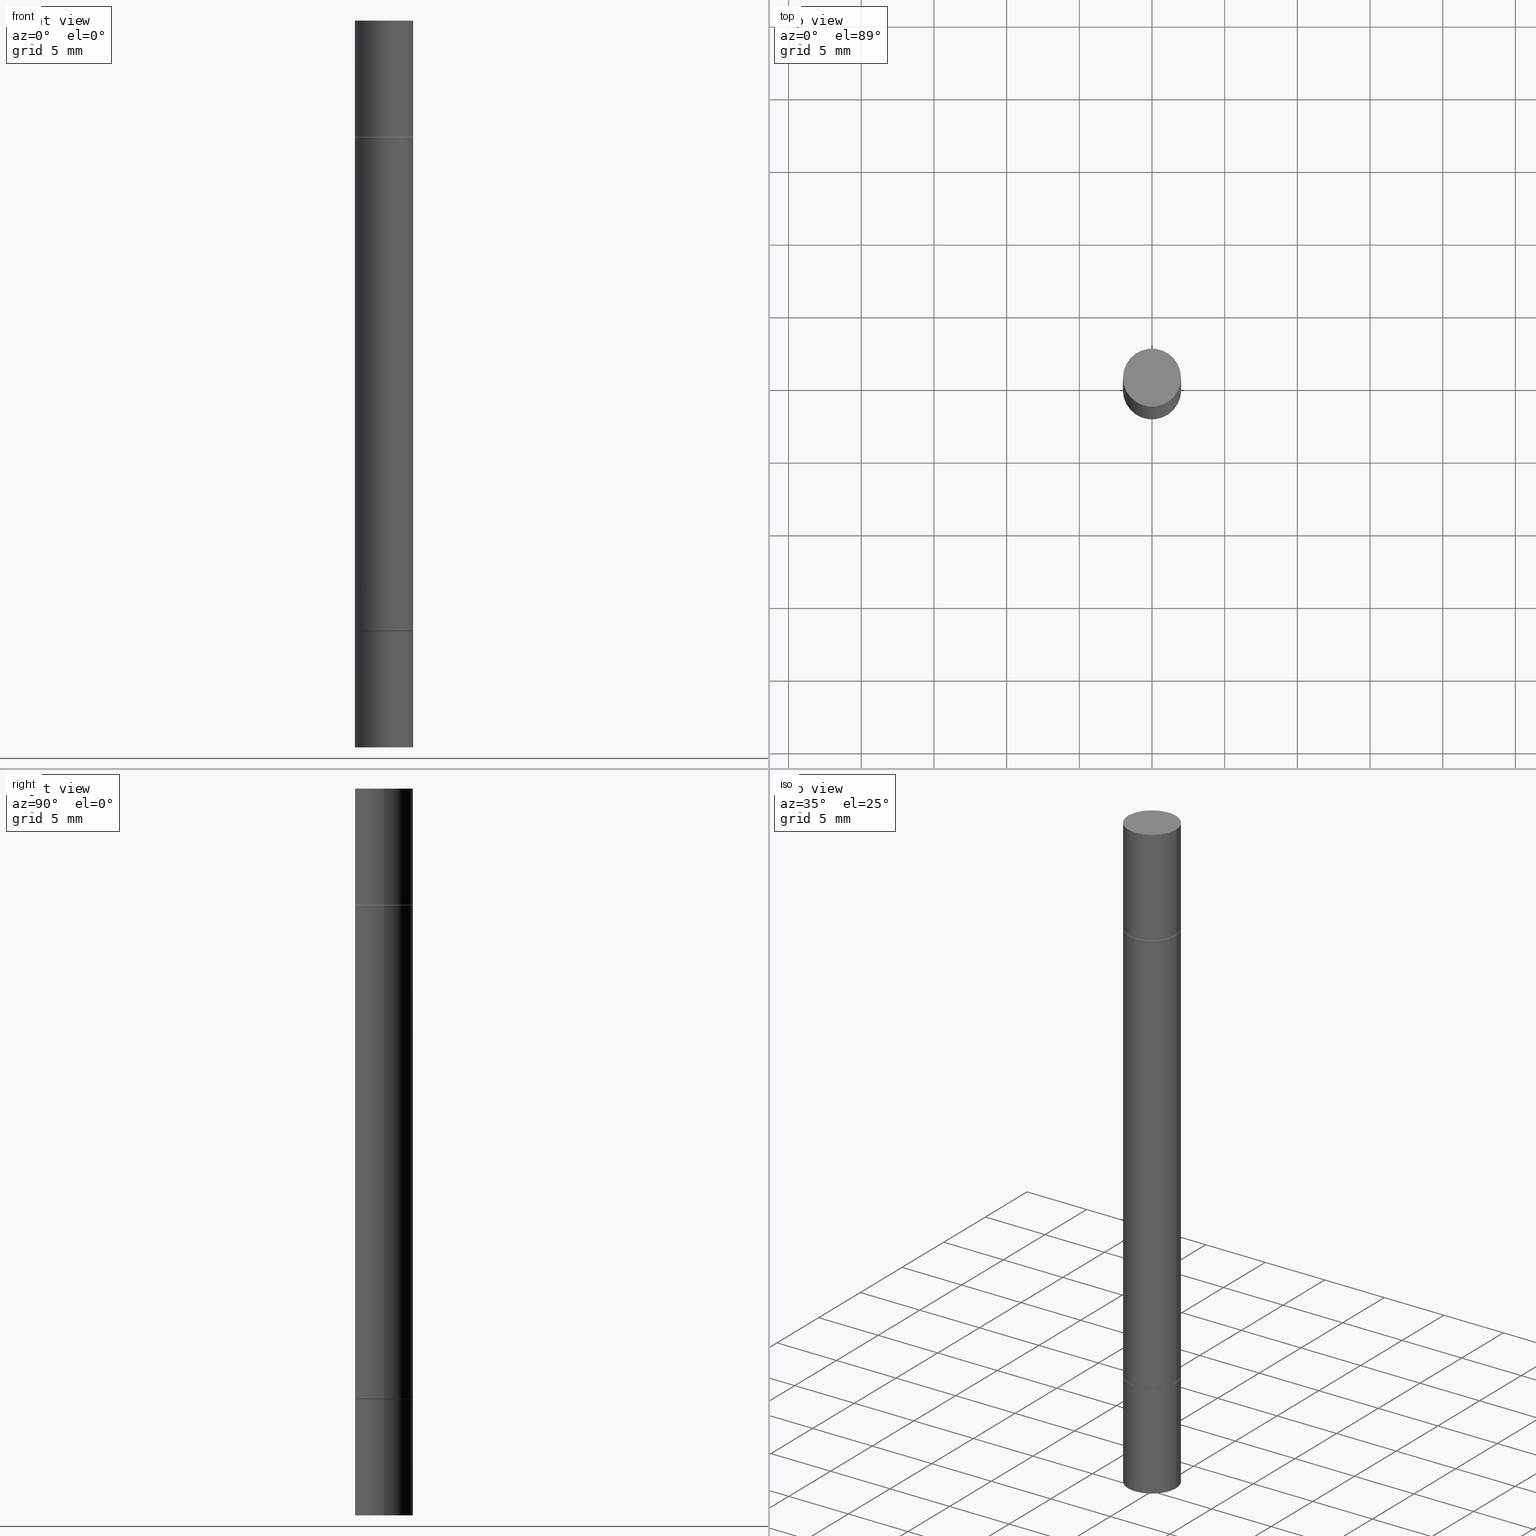
[diagram: canonical four-view strip — front | top / right | iso, engineering-drawing reading convention]
A machine part, canonical four-view strip (front | top / right | iso — engineering-drawing reading convention). The complete STEP part file that produces these views, byte-faithful:
ISO-10303-21;
HEADER;
FILE_DESCRIPTION (( 'STEP AP203' ),
    '1' );
FILE_NAME ('49058.STEP',
    '2024-03-04T15:53:27',
    ( '' ),
    ( '' ),
    'SwSTEP 2.0',
    'SolidWorks 2023',
    '' );
FILE_SCHEMA (( 'CONFIG_CONTROL_DESIGN' ));
ENDSEC;

DATA;
#1 = DIRECTION ( 'NONE',  ( 1.000000000000000000, -6.982962677686273021E-15, 0.000000000000000000 ) ) ;
#2 = PERSON_AND_ORGANIZATION_ROLE ( 'creator' ) ;
#3 = VERTEX_POINT ( 'NONE', #266 ) ;
#4 = EDGE_LOOP ( 'NONE', ( #432, #157 ) ) ;
#5 = CC_DESIGN_PERSON_AND_ORGANIZATION_ASSIGNMENT ( #397, #580, ( #200 ) ) ;
#6 = DIRECTION ( 'NONE',  ( -2.445468806185136597E-29, -3.492890411551752677E-15, -1.000000000000000000 ) ) ;
#7 = ORIENTED_EDGE ( 'NONE', *, *, #676, .T. ) ;
#8 = PERSON_AND_ORGANIZATION_ROLE ( 'classification_officer' ) ;
#9 = CYLINDRICAL_SURFACE ( 'NONE', #469, 0.07875000000000000056 ) ;
#10 = CIRCLE ( 'NONE', #666, 0.07874999999999987566 ) ;
#11 = AXIS2_PLACEMENT_3D ( 'NONE', #612, #299, #146 ) ;
#12 = DATE_AND_TIME ( #412, #46 ) ;
#13 = CARTESIAN_POINT ( 'NONE',  ( 4.043582671027123201E-29, -1.098873599825354270E-15, -0.3149999999999997802 ) ) ;
#14 = EDGE_CURVE ( 'NONE', #556, #517, #10, .T. ) ;
#15 = VERTEX_POINT ( 'NONE', #317 ) ;
#16 =( NAMED_UNIT ( * ) SI_UNIT ( $, .STERADIAN. ) SOLID_ANGLE_UNIT ( ) );
#17 = DIRECTION ( 'NONE',  ( 0.000000000000000000, 3.492185875197449524E-15, 1.000000000000000000 ) ) ;
#18 = ADVANCED_FACE ( 'NONE', ( #587 ), #150, .T. ) ;
#19 = ORIENTED_EDGE ( 'NONE', *, *, #341, .F. ) ;
#20 = CARTESIAN_POINT ( 'NONE',  ( 0.000000000000000000, 0.000000000000000000, 0.000000000000000000 ) ) ;
#21 = APPLICATION_CONTEXT ( 'configuration controlled 3d designs of mechanical parts and assemblies' ) ;
#22 = AXIS2_PLACEMENT_3D ( 'NONE', #442, #593, #283 ) ;
#23 = CARTESIAN_POINT ( 'NONE',  ( 4.043582671027123201E-29, -1.098873599825354270E-15, -0.3149999999999997802 ) ) ;
#24 = DIRECTION ( 'NONE',  ( 1.000000000000000000, -6.982962677686264344E-15, 0.000000000000000000 ) ) ;
#25 = CC_DESIGN_APPROVAL ( #505, ( #224 ) ) ;
#26 = DIRECTION ( 'NONE',  ( 2.445468806185136597E-29, 3.492890411551752677E-15, 1.000000000000000000 ) ) ;
#27 =( LENGTH_UNIT ( ) NAMED_UNIT ( * ) SI_UNIT ( $, .METRE. ) );
#28 = ADVANCED_FACE ( 'NONE', ( #529 ), #9, .T. ) ;
#29 = LINE ( 'NONE', #448, #290 ) ;
#30 = DIRECTION ( 'NONE',  ( 1.000000000000000000, -6.982962677686265922E-15, 0.000000000000000000 ) ) ;
#31 = VECTOR ( 'NONE', #134, 39.37007874015748143 ) ;
#32 = AXIS2_PLACEMENT_3D ( 'NONE', #227, #387, #599 ) ;
#33 = CONICAL_SURFACE ( 'NONE', #32, 0.07774999999999999967, 0.7853981633974056464 ) ;
#34 = EDGE_LOOP ( 'NONE', ( #672, #309, #113, #148 ) ) ;
#35 = CC_DESIGN_DATE_AND_TIME_ASSIGNMENT ( #162, #251, ( #114 ) ) ;
#36 = DIRECTION ( 'NONE',  ( -1.000000000000000000, 6.982962677686265922E-15, -9.839502134516470631E-33 ) ) ;
#37 = EDGE_LOOP ( 'NONE', ( #559, #128 ) ) ;
#38 = EDGE_CURVE ( 'NONE', #453, #258, #531, .T. ) ;
#39 = ORIENTED_EDGE ( 'NONE', *, *, #14, .F. ) ;
#40 = LINE ( 'NONE', #333, #235 ) ;
#41 = ORIENTED_EDGE ( 'NONE', *, *, #323, .T. ) ;
#42 = CARTESIAN_POINT ( 'NONE',  ( -0.07875000000000000056, 5.595524044110789003E-16, -3.873661383575737792E-30 ) ) ;
#43 = AXIS2_PLACEMENT_3D ( 'NONE', #641, #447, #78 ) ;
#44 = VECTOR ( 'NONE', #71, 39.37007874015748143 ) ;
#45 = EDGE_LOOP ( 'NONE', ( #487, #304, #484, #218 ) ) ;
#46 = LOCAL_TIME ( 10, 53, 27.00000000000000000, #66 ) ;
#47 = DIRECTION ( 'NONE',  ( -2.445468806185136877E-29, -3.492890411551753071E-15, -1.000000000000000000 ) ) ;
#48 = ORIENTED_EDGE ( 'NONE', *, *, #449, .T. ) ;
#49 = DIRECTION ( 'NONE',  ( 1.000000000000000000, -6.982962677686265922E-15, 9.839502134516470631E-33 ) ) ;
#50 = FACE_OUTER_BOUND ( 'NONE', #45, .T. ) ;
#51 = EDGE_CURVE ( 'NONE', #435, #165, #364, .T. ) ;
#52 = PERSON_AND_ORGANIZATION ( #573, #91 ) ;
#53 = CARTESIAN_POINT ( 'NONE',  ( 4.041137202220937598E-29, -1.102366490236907793E-15, -0.3159999999999998366 ) ) ;
#54 = CARTESIAN_POINT ( 'NONE',  ( 4.043582671027123201E-29, -5.773164393777141072E-15, -1.653499999999999970 ) ) ;
#55 = AXIS2_PLACEMENT_3D ( 'NONE', #53, #252, #198 ) ;
#56 = EDGE_LOOP ( 'NONE', ( #511, #202, #308, #19 ) ) ;
#57 = CONICAL_SURFACE ( 'NONE', #328, 0.07774999999999999967, 0.7853981633974056464 ) ;
#58 = EDGE_LOOP ( 'NONE', ( #183, #361, #189, #267 ) ) ;
#59 = CIRCLE ( 'NONE', #179, 0.07875000000000000056 ) ;
#60 = DIRECTION ( 'NONE',  ( 1.000000000000000000, -6.982962677686266711E-15, 0.000000000000000000 ) ) ;
#61 = CARTESIAN_POINT ( 'NONE',  ( 5.499083108678337748E-16, 0.07874999999999422740, -1.653500000000000192 ) ) ;
#62 = CALENDAR_DATE ( 2024, 4, 3 ) ;
#63 = ORIENTED_EDGE ( 'NONE', *, *, #239, .F. ) ;
#64 = COORDINATED_UNIVERSAL_TIME_OFFSET ( 5, 0, .BEHIND. ) ;
#65 = ORIENTED_EDGE ( 'NONE', *, *, #572, .T. ) ;
#66 = COORDINATED_UNIVERSAL_TIME_OFFSET ( 5, 0, .BEHIND. ) ;
#67 = CARTESIAN_POINT ( 'NONE',  ( 4.041137202220937598E-29, -1.102366490236907793E-15, -0.3159999999999998366 ) ) ;
#68 = ORIENTED_EDGE ( 'NONE', *, *, #496, .F. ) ;
#69 = VECTOR ( 'NONE', #671, 39.37007874015748143 ) ;
#70 = VECTOR ( 'NONE', #490, 39.37007874015748143 ) ;
#71 = DIRECTION ( 'NONE',  ( -2.445468806185136877E-29, -3.492890411551753071E-15, -1.000000000000000000 ) ) ;
#72 = EDGE_CURVE ( 'NONE', #258, #453, #645, .T. ) ;
#73 = PRODUCT_DEFINITION_SHAPE ( 'NONE', 'NONE',  #582 ) ;
#74 = CARTESIAN_POINT ( 'NONE',  ( 2.406952672487720357E-29, -3.436490507756365459E-15, -0.9842499999999998472 ) ) ;
#75 = DIRECTION ( 'NONE',  ( 1.000000000000000000, -6.982962677686273021E-15, 0.000000000000000000 ) ) ;
#76 = CARTESIAN_POINT ( 'NONE',  ( 4.041137202220937598E-29, -5.769672912438298064E-15, -1.652499999999999858 ) ) ;
#77 = FACE_OUTER_BOUND ( 'NONE', #574, .T. ) ;
#78 = DIRECTION ( 'NONE',  ( 1.000000000000000000, -6.982962677686261977E-15, 0.000000000000000000 ) ) ;
#79 = DIRECTION ( 'NONE',  ( -2.445468806185136597E-29, 3.491481338843145583E-15, 1.000000000000000000 ) ) ;
#80 = CYLINDRICAL_SURFACE ( 'NONE', #338, 0.07874999999999987566 ) ;
#81 = AXIS2_PLACEMENT_3D ( 'NONE', #473, #205, #362 ) ;
#82 = DIRECTION ( 'NONE',  ( -2.445468806185136597E-29, -3.492890411551752677E-15, -1.000000000000000000 ) ) ;
#83 = CC_DESIGN_SECURITY_CLASSIFICATION ( #114, ( #224 ) ) ;
#84 = FACE_OUTER_BOUND ( 'NONE', #164, .T. ) ;
#85 = EDGE_CURVE ( 'NONE', #15, #349, #327, .T. ) ;
#86 = CARTESIAN_POINT ( 'NONE',  ( 0.07875000000000000056, -7.424276206193971655E-15, -1.968499999999999694 ) ) ;
#87 = CARTESIAN_POINT ( 'NONE',  ( 0.07874999999999997280, -6.319581223306091410E-15, -1.652499999999999858 ) ) ;
#88 = CARTESIAN_POINT ( 'NONE',  ( 0.000000000000000000, -6.874367895326177521E-15, -1.968499999999999694 ) ) ;
#89 = CARTESIAN_POINT ( 'NONE',  ( -0.07875000000000000056, -8.479142681445664027E-18, 2.731847993664282447E-16 ) ) ;
#90 = VECTOR ( 'NONE', #538, 39.37007874015748143 ) ;
#91 = ORGANIZATION ( 'UNSPECIFIED', 'UNSPECIFIED', '' ) ;
#92 = ADVANCED_FACE ( 'NONE', ( #637 ), #388, .T. ) ;
#93 = LINE ( 'NONE', #104, #210 ) ;
#94 = CARTESIAN_POINT ( 'NONE',  ( -0.07875000000000000056, -5.763520300233858771E-15, -1.968500000000000139 ) ) ;
#95 = CARTESIAN_POINT ( 'NONE',  ( 0.07774999999999999967, -6.316089741967247614E-15, -1.653499999999999970 ) ) ;
#96 = EDGE_LOOP ( 'NONE', ( #63, #526, #318, #530 ) ) ;
#97 = CARTESIAN_POINT ( 'NONE',  ( 4.043582671027123201E-29, -1.098873599825354270E-15, -0.3149999999999997802 ) ) ;
#98 = FACE_OUTER_BOUND ( 'NONE', #336, .T. ) ;
#99 = LINE ( 'NONE', #42, #234 ) ;
#100 = AXIS2_PLACEMENT_3D ( 'NONE', #23, #168, #443 ) ;
#101 = AXIS2_PLACEMENT_3D ( 'NONE', #191, #291, #288 ) ;
#102 = ORIENTED_EDGE ( 'NONE', *, *, #454, .F. ) ;
#103 = AXIS2_PLACEMENT_3D ( 'NONE', #385, #131, #230 ) ;
#104 = CARTESIAN_POINT ( 'NONE',  ( -0.07874999999999987566, -6.334103678001671209E-15, -1.968499999999999694 ) ) ;
#105 = EDGE_LOOP ( 'NONE', ( #278, #592 ) ) ;
#106 = CARTESIAN_POINT ( 'NONE',  ( 4.041137202220937598E-29, -1.102366490236907793E-15, -0.3159999999999998366 ) ) ;
#107 = DATE_TIME_ROLE ( 'creation_date' ) ;
#108 = VERTEX_POINT ( 'NONE', #653 ) ;
#109 = ORIENTED_EDGE ( 'NONE', *, *, #395, .T. ) ;
#110 = APPROVAL_ROLE ( '' ) ;
#111 = EDGE_CURVE ( 'NONE', #246, #517, #93, .T. ) ;
#112 = AXIS2_PLACEMENT_3D ( 'NONE', #297, #353, #463 ) ;
#113 = ORIENTED_EDGE ( 'NONE', *, *, #341, .T. ) ;
#114 = SECURITY_CLASSIFICATION ( '', '', #480 ) ;
#115 = CALENDAR_DATE ( 2024, 4, 3 ) ;
#116 = ORIENTED_EDGE ( 'NONE', *, *, #160, .T. ) ;
#117 = FACE_OUTER_BOUND ( 'NONE', #357, .T. ) ;
#118 = PERSON_AND_ORGANIZATION ( #573, #91 ) ;
#119 = ORIENTED_EDGE ( 'NONE', *, *, #372, .F. ) ;
#120 = ORIENTED_EDGE ( 'NONE', *, *, #629, .F. ) ;
#121 = CARTESIAN_POINT ( 'NONE',  ( 4.043582671027123201E-29, -1.098873599825354270E-15, -0.3149999999999997802 ) ) ;
#122 = ORIENTED_EDGE ( 'NONE', *, *, #138, .F. ) ;
#123 = DIRECTION ( 'NONE',  ( 0.000000000000000000, 1.000000000000000000, -3.469013325287958815E-15 ) ) ;
#124 = VECTOR ( 'NONE', #348, 39.37007874015748143 ) ;
#125 = CIRCLE ( 'NONE', #103, 0.07875000000000000056 ) ;
#126 = ADVANCED_FACE ( 'NONE', ( #615 ), #247, .F. ) ;
#127 = DIRECTION ( 'NONE',  ( 1.000000000000000000, -6.982962677686266711E-15, 0.000000000000000000 ) ) ;
#128 = ORIENTED_EDGE ( 'NONE', *, *, #560, .T. ) ;
#129 = CARTESIAN_POINT ( 'NONE',  ( -0.07774999999999999967, -5.654698804986176969E-16, -0.3149999999999997802 ) ) ;
#130 = ADVANCED_FACE ( 'NONE', ( #575 ), #260, .T. ) ;
#131 = DIRECTION ( 'NONE',  ( 2.445468806185136597E-29, 3.492890411551752677E-15, 1.000000000000000000 ) ) ;
#132 = DIRECTION ( 'NONE',  ( 2.445468806185136597E-29, 3.492890411551752677E-15, 1.000000000000000000 ) ) ;
#133 = CLOSED_SHELL ( 'NONE', ( #248, #433, #422, #28 ) ) ;
#134 = DIRECTION ( 'NONE',  ( -2.445468806185136877E-29, -3.492890411551753071E-15, -1.000000000000000000 ) ) ;
#135 = AXIS2_PLACEMENT_3D ( 'NONE', #20, #628, #324 ) ;
#136 = LENGTH_MEASURE_WITH_UNIT ( LENGTH_MEASURE( 0.02539999999999999897 ), #27 );
#137 = CARTESIAN_POINT ( 'NONE',  ( -0.07874999999999997280, -5.621022729123983254E-16, -0.3159999999999998366 ) ) ;
#138 = EDGE_CURVE ( 'NONE', #144, #635, #459, .T. ) ;
#139 = DIRECTION ( 'NONE',  ( 0.7071067811865173747, -7.407546758114139682E-15, -0.7071067811865776598 ) ) ;
#140 = VERTEX_POINT ( 'NONE', #154 ) ;
#141 = FACE_OUTER_BOUND ( 'NONE', #244, .T. ) ;
#142 = VECTOR ( 'NONE', #610, 39.37007874015748143 ) ;
#143 = DIRECTION ( 'NONE',  ( 0.7071067811865173747, -7.407546758114139682E-15, -0.7071067811865776598 ) ) ;
#144 = VERTEX_POINT ( 'NONE', #419 ) ;
#145 = CC_DESIGN_PERSON_AND_ORGANIZATION_ASSIGNMENT ( #477, #2, ( #224 ) ) ;
#146 = DIRECTION ( 'NONE',  ( 1.000000000000000000, -6.982962677686264344E-15, 0.000000000000000000 ) ) ;
#147 = DIRECTION ( 'NONE',  ( 1.000000000000000000, -6.982962677686265922E-15, 4.876176775795935232E-29 ) ) ;
#148 = ORIENTED_EDGE ( 'NONE', *, *, #38, .T. ) ;
#149 = DIMENSIONAL_EXPONENTS ( 1.000000000000000000, 0.000000000000000000, 0.000000000000000000, 0.000000000000000000, 0.000000000000000000, 0.000000000000000000, 0.000000000000000000 ) ;
#150 = CONICAL_SURFACE ( 'NONE', #378, 0.07774999999999999967, 0.7853981633974056464 ) ;
#151 = AXIS2_PLACEMENT_3D ( 'NONE', #464, #452, #147 ) ;
#152 = ORIENTED_EDGE ( 'NONE', *, *, #225, .T. ) ;
#153 = AXIS2_PLACEMENT_3D ( 'NONE', #547, #439, #287 ) ;
#154 = CARTESIAN_POINT ( 'NONE',  ( 0.07875000000000000056, -5.485214310543458561E-16, 2.731847993664263218E-16 ) ) ;
#155 = ADVANCED_FACE ( 'NONE', ( #208 ), #626, .F. ) ;
#156 = ORIENTED_EDGE ( 'NONE', *, *, #335, .T. ) ;
#157 = ORIENTED_EDGE ( 'NONE', *, *, #676, .F. ) ;
#158 = DIRECTION ( 'NONE',  ( 1.000000000000000000, -6.982962677686261977E-15, 0.000000000000000000 ) ) ;
#159 = FACE_OUTER_BOUND ( 'NONE', #105, .T. ) ;
#160 = EDGE_CURVE ( 'NONE', #635, #144, #426, .T. ) ;
#161 = AXIS2_PLACEMENT_3D ( 'NONE', #414, #263, #158 ) ;
#162 = DATE_AND_TIME ( #425, #493 ) ;
#163 = ORIENTED_EDGE ( 'NONE', *, *, #111, .F. ) ;
#164 = EDGE_LOOP ( 'NONE', ( #458, #667, #295, #634 ) ) ;
#165 = VERTEX_POINT ( 'NONE', #570 ) ;
#166 = ADVANCED_FACE ( 'NONE', ( #523 ), #57, .T. ) ;
#167 = DIRECTION ( 'NONE',  ( -2.445468806185136597E-29, -3.492890411551752677E-15, -1.000000000000000000 ) ) ;
#168 = DIRECTION ( 'NONE',  ( -2.445468806185136597E-29, -3.492890411551752677E-15, -1.000000000000000000 ) ) ;
#169 = DIRECTION ( 'NONE',  ( 0.000000000000000000, 1.000000000000000000, -3.492185875197449524E-15 ) ) ;
#170 = ORIENTED_EDGE ( 'NONE', *, *, #72, .F. ) ;
#171 = LINE ( 'NONE', #382, #90 ) ;
#172 = VECTOR ( 'NONE', #143, 39.37007874015748143 ) ;
#173 = APPROVAL_PERSON_ORGANIZATION ( #307, #264, #363 ) ;
#174 = LINE ( 'NONE', #544, #679 ) ;
#175 = CARTESIAN_POINT ( 'NONE',  ( -0.07875000000000000056, -8.479142681445664027E-18, -0.3149999999999997802 ) ) ;
#176 = EDGE_CURVE ( 'NONE', #349, #15, #379, .T. ) ;
#177 = DIRECTION ( 'NONE',  ( -2.445468806185136597E-29, 3.491481338843145583E-15, 1.000000000000000000 ) ) ;
#178 = AXIS2_PLACEMENT_3D ( 'NONE', #350, #562, #60 ) ;
#179 = AXIS2_PLACEMENT_3D ( 'NONE', #232, #548, #440 ) ;
#180 = EDGE_CURVE ( 'NONE', #589, #262, #546, .T. ) ;
#181 = CARTESIAN_POINT ( 'NONE',  ( 0.07774999999999999967, -1.641798948015461602E-15, -0.3149999999999997802 ) ) ;
#182 = CARTESIAN_POINT ( 'NONE',  ( -0.07774999999999999967, -5.654698804986176969E-16, -0.3149999999999997802 ) ) ;
#183 = ORIENTED_EDGE ( 'NONE', *, *, #549, .T. ) ;
#184 = CARTESIAN_POINT ( 'NONE',  ( 0.07875000000000000056, -7.422889326380525053E-15, -1.968500000000000139 ) ) ;
#185 = AXIS2_PLACEMENT_3D ( 'NONE', #97, #673, #49 ) ;
#186 = ORIENTED_EDGE ( 'NONE', *, *, #552, .F. ) ;
#187 = CARTESIAN_POINT ( 'NONE',  ( -0.07774999999999999967, -5.215418962375440876E-15, -1.653499999999999970 ) ) ;
#188 = MANIFOLD_SOLID_BREP ( 'Mirror1[3]', #133 ) ;
#189 = ORIENTED_EDGE ( 'NONE', *, *, #176, .F. ) ;
#190 = PLANE ( 'NONE',  #320 ) ;
#191 = CARTESIAN_POINT ( 'NONE',  ( 5.499083108678337748E-16, 0.07874999999999889033, -0.3150000000000000577 ) ) ;
#192 = MANIFOLD_SOLID_BREP ( 'Mirror1[1]', #532 ) ;
#193 = ORIENTED_EDGE ( 'NONE', *, *, #540, .F. ) ;
#194 = PRODUCT_RELATED_PRODUCT_CATEGORY ( 'detail', '', ( #200 ) ) ;
#195 = DIRECTION ( 'NONE',  ( 1.000000000000000000, -6.982962677686261977E-15, 0.000000000000000000 ) ) ;
#196 = EDGE_LOOP ( 'NONE', ( #659, #152 ) ) ;
#197 = AXIS2_PLACEMENT_3D ( 'NONE', #331, #238, #402 ) ;
#198 = DIRECTION ( 'NONE',  ( 1.000000000000000000, -6.982962677686267499E-15, 0.000000000000000000 ) ) ;
#199 = ADVANCED_FACE ( 'NONE', ( #584 ), #274, .T. ) ;
#200 = PRODUCT ( '49058', '49058', '', ( #344 ) ) ;
#201 = MANIFOLD_SOLID_BREP ( 'Mirror1[4]', #631 ) ;
#202 = ORIENTED_EDGE ( 'NONE', *, *, #392, .T. ) ;
#203 = MANIFOLD_SOLID_BREP ( 'Combine1', #298 ) ;
#204 = ORIENTED_EDGE ( 'NONE', *, *, #138, .T. ) ;
#205 = DIRECTION ( 'NONE',  ( 2.438088387897960049E-29, -3.491481338843145188E-15, -1.000000000000000000 ) ) ;
#206 = CALENDAR_DATE ( 2024, 4, 3 ) ;
#207 = ORIENTED_EDGE ( 'NONE', *, *, #253, .T. ) ;
#208 = FACE_OUTER_BOUND ( 'NONE', #623, .T. ) ;
#209 = PERSON_AND_ORGANIZATION_ROLE ( 'design_supplier' ) ;
#210 = VECTOR ( 'NONE', #518, 39.37007874015748143 ) ;
#211 = DIRECTION ( 'NONE',  ( 1.000000000000000000, -6.982962677686261977E-15, 0.000000000000000000 ) ) ;
#212 = AXIS2_PLACEMENT_3D ( 'NONE', #444, #79, #384 ) ;
#213 = AXIS2_PLACEMENT_3D ( 'NONE', #121, #321, #537 ) ;
#214 = SHAPE_DEFINITION_REPRESENTATION ( #73, #398 ) ;
#215 = DIRECTION ( 'NONE',  ( 1.000000000000000000, -6.982962677686266711E-15, 0.000000000000000000 ) ) ;
#216 = ORIENTED_EDGE ( 'NONE', *, *, #646, .T. ) ;
#217 = FACE_OUTER_BOUND ( 'NONE', #96, .T. ) ;
#218 = ORIENTED_EDGE ( 'NONE', *, *, #567, .T. ) ;
#219 = CARTESIAN_POINT ( 'NONE',  ( 0.000000000000000000, -6.874367895326177521E-15, -1.968499999999999694 ) ) ;
#220 = FACE_OUTER_BOUND ( 'NONE', #314, .T. ) ;
#221 = LINE ( 'NONE', #86, #44 ) ;
#222 = DIRECTION ( 'NONE',  ( -0.7071067811865173747, 7.493145998870245297E-15, 0.7071067811865776598 ) ) ;
#223 = CIRCLE ( 'NONE', #579, 0.07874999999999987566 ) ;
#224 = PRODUCT_DEFINITION_FORMATION_WITH_SPECIFIED_SOURCE ( 'ANY', '', #200, .NOT_KNOWN. ) ;
#225 = EDGE_CURVE ( 'NONE', #517, #556, #223, .T. ) ;
#226 = CARTESIAN_POINT ( 'NONE',  ( 4.043582671027123201E-29, -1.098873599825354270E-15, -0.3149999999999997802 ) ) ;
#227 = CARTESIAN_POINT ( 'NONE',  ( 4.043582671027123201E-29, -1.098873599825354270E-15, -0.3149999999999997802 ) ) ;
#228 = DIRECTION ( 'NONE',  ( -2.445468806185136597E-29, -3.492890411551752677E-15, -1.000000000000000000 ) ) ;
#229 = EDGE_CURVE ( 'NONE', #424, #605, #171, .T. ) ;
#230 = DIRECTION ( 'NONE',  ( 1.000000000000000000, -6.982962677686265922E-15, 0.000000000000000000 ) ) ;
#231 = CC_DESIGN_PERSON_AND_ORGANIZATION_ASSIGNMENT ( #421, #209, ( #224 ) ) ;
#232 = CARTESIAN_POINT ( 'NONE',  ( 4.043582671027123201E-29, -1.098873599825354270E-15, -0.3149999999999997802 ) ) ;
#233 = AXIS2_PLACEMENT_3D ( 'NONE', #13, #638, #467 ) ;
#234 = VECTOR ( 'NONE', #457, 39.37007874015748143 ) ;
#235 = VECTOR ( 'NONE', #498, 39.37007874015748143 ) ;
#236 = DIRECTION ( 'NONE',  ( -2.445468806185136597E-29, 3.491481338843145583E-15, 1.000000000000000000 ) ) ;
#237 = AXIS2_PLACEMENT_3D ( 'NONE', #106, #305, #374 ) ;
#238 = DIRECTION ( 'NONE',  ( 2.445468806185136597E-29, 3.492890411551752677E-15, 1.000000000000000000 ) ) ;
#239 = EDGE_CURVE ( 'NONE', #418, #3, #367, .T. ) ;
#240 = ORIENTED_EDGE ( 'NONE', *, *, #619, .T. ) ;
#241 = CARTESIAN_POINT ( 'NONE',  ( -0.07875000000000000056, -8.479142681445664027E-18, -0.3149999999999997802 ) ) ;
#242 = ORIENTED_EDGE ( 'NONE', *, *, #306, .T. ) ;
#243 = DIRECTION ( 'NONE',  ( 2.438088387897959769E-29, 3.492890411551753071E-15, 1.000000000000000000 ) ) ;
#244 = EDGE_LOOP ( 'NONE', ( #240, #207 ) ) ;
#245 = FACE_OUTER_BOUND ( 'NONE', #569, .T. ) ;
#246 = VERTEX_POINT ( 'NONE', #595 ) ;
#247 = PLANE ( 'NONE',  #256 ) ;
#248 = ADVANCED_FACE ( 'NONE', ( #117 ), #325, .T. ) ;
#249 = CARTESIAN_POINT ( 'NONE',  ( 4.813905344975441835E-29, 1.386879813447681415E-18, 2.731847993664263218E-16 ) ) ;
#250 = ORIENTED_EDGE ( 'NONE', *, *, #111, .T. ) ;
#251 = DATE_TIME_ROLE ( 'classification_date' ) ;
#252 = DIRECTION ( 'NONE',  ( 2.445468806185136597E-29, 3.492890411551752677E-15, 1.000000000000000000 ) ) ;
#253 = EDGE_CURVE ( 'NONE', #515, #140, #282, .T. ) ;
#254 = DIRECTION ( 'NONE',  ( -2.438088387897959769E-29, -3.492890411551753071E-15, -1.000000000000000000 ) ) ;
#255 = CYLINDRICAL_SURFACE ( 'NONE', #500, 0.07874999999999987566 ) ;
#256 = AXIS2_PLACEMENT_3D ( 'NONE', #346, #254, #624 ) ;
#257 = LOCAL_TIME ( 10, 53, 27.00000000000000000, #265 ) ;
#258 = VERTEX_POINT ( 'NONE', #137 ) ;
#259 = ORIENTED_EDGE ( 'NONE', *, *, #38, .F. ) ;
#260 = PLANE ( 'NONE',  #81 ) ;
#261 = DIRECTION ( 'NONE',  ( 1.000000000000000000, -6.982962677686265922E-15, 0.000000000000000000 ) ) ;
#262 = VERTEX_POINT ( 'NONE', #534 ) ;
#263 = DIRECTION ( 'NONE',  ( -2.445468806185136597E-29, 3.491481338843145583E-15, 1.000000000000000000 ) ) ;
#264 = APPROVAL ( #269, 'UNSPECIFIED' ) ;
#265 = COORDINATED_UNIVERSAL_TIME_OFFSET ( 5, 0, .BEHIND. ) ;
#266 = CARTESIAN_POINT ( 'NONE',  ( -0.07874999999999997280, -2.896226290431854020E-15, -1.652499999999999858 ) ) ;
#267 = ORIENTED_EDGE ( 'NONE', *, *, #340, .F. ) ;
#268 = DIRECTION ( 'NONE',  ( 1.000000000000000000, -6.982962677686266711E-15, 0.000000000000000000 ) ) ;
#269 = APPROVAL_STATUS ( 'not_yet_approved' ) ;
#270 = CLOSED_SHELL ( 'NONE', ( #376, #130, #516, #594 ) ) ;
#271 = DIRECTION ( 'NONE',  ( 2.445468806185136597E-29, 3.492890411551752677E-15, 1.000000000000000000 ) ) ;
#272 = CIRCLE ( 'NONE', #678, 0.07774999999999999967 ) ;
#273 = ORIENTED_EDGE ( 'NONE', *, *, #646, .F. ) ;
#274 = CYLINDRICAL_SURFACE ( 'NONE', #301, 0.07875000000000000056 ) ;
#275 =( CONVERSION_BASED_UNIT ( 'INCH', #136 ) LENGTH_UNIT ( ) NAMED_UNIT ( #149 ) );
#276 = CYLINDRICAL_SURFACE ( 'NONE', #399, 0.07874999999999987566 ) ;
#277 = EDGE_CURVE ( 'NONE', #140, #165, #221, .T. ) ;
#278 = ORIENTED_EDGE ( 'NONE', *, *, #176, .T. ) ;
#279 = CARTESIAN_POINT ( 'NONE',  ( -0.07774999999999999967, -5.220717416723663278E-15, -1.653499999999999970 ) ) ;
#280 = FACE_OUTER_BOUND ( 'NONE', #370, .T. ) ;
#281 = EDGE_CURVE ( 'NONE', #504, #605, #647, .T. ) ;
#282 = CIRCLE ( 'NONE', #632, 0.07875000000000000056 ) ;
#283 = DIRECTION ( 'NONE',  ( 1.000000000000000000, -6.982962677686265922E-15, 4.876176775795935793E-29 ) ) ;
#284 = CYLINDRICAL_SURFACE ( 'NONE', #153, 0.07875000000000000056 ) ;
#285 = CARTESIAN_POINT ( 'NONE',  ( 4.813905344975441835E-29, -6.872981015512731707E-15, -1.968500000000000139 ) ) ;
#286 = DIRECTION ( 'NONE',  ( 1.000000000000000000, -6.982962677686268288E-15, 0.000000000000000000 ) ) ;
#287 = DIRECTION ( 'NONE',  ( 1.000000000000000000, -6.982962677686265922E-15, 4.876176775795935232E-29 ) ) ;
#288 = DIRECTION ( 'NONE',  ( -1.000000000000000000, 6.982962677686265922E-15, -9.839502134516470631E-33 ) ) ;
#289 = VECTOR ( 'NONE', #222, 39.37007874015748143 ) ;
#290 = VECTOR ( 'NONE', #543, 39.37007874015748143 ) ;
#291 = DIRECTION ( 'NONE',  ( 2.438088387897959769E-29, 3.492890411551753071E-15, 1.000000000000000000 ) ) ;
#292 = DIRECTION ( 'NONE',  ( -1.000000000000000000, 6.982962677686265922E-15, -9.839502134516470631E-33 ) ) ;
#293 = ADVANCED_FACE ( 'NONE', ( #654 ), #276, .T. ) ;
#294 = CARTESIAN_POINT ( 'NONE',  ( -0.07875000000000000056, -6.334103678001670420E-15, -1.968499999999999694 ) ) ;
#295 = ORIENTED_EDGE ( 'NONE', *, *, #552, .T. ) ;
#296 = ADVANCED_FACE ( 'NONE', ( #217 ), #337, .T. ) ;
#297 = CARTESIAN_POINT ( 'NONE',  ( 4.043582671027123201E-29, -1.098873599825354270E-15, -0.3149999999999997802 ) ) ;
#298 = CLOSED_SHELL ( 'NONE', ( #166, #655, #92, #126, #18, #293, #296, #486 ) ) ;
#299 = DIRECTION ( 'NONE',  ( -2.445468806185136597E-29, 3.491481338843145583E-15, 1.000000000000000000 ) ) ;
#300 = LINE ( 'NONE', #658, #172 ) ;
#301 = AXIS2_PLACEMENT_3D ( 'NONE', #219, #430, #371 ) ;
#302 = ORIENTED_EDGE ( 'NONE', *, *, #640, .F. ) ;
#303 = ADVANCED_FACE ( 'NONE', ( #436 ), #485, .F. ) ;
#304 = ORIENTED_EDGE ( 'NONE', *, *, #619, .F. ) ;
#305 = DIRECTION ( 'NONE',  ( 2.445468806185136597E-29, 3.492890411551752677E-15, 1.000000000000000000 ) ) ;
#306 = EDGE_CURVE ( 'NONE', #262, #589, #272, .T. ) ;
#307 = PERSON_AND_ORGANIZATION ( #573, #91 ) ;
#308 = ORIENTED_EDGE ( 'NONE', *, *, #72, .T. ) ;
#309 = ORIENTED_EDGE ( 'NONE', *, *, #180, .F. ) ;
#310 = CARTESIAN_POINT ( 'NONE',  ( 4.813905344975441835E-29, 1.386879813447681415E-18, 2.731847993664263218E-16 ) ) ;
#311 = CIRCLE ( 'NONE', #197, 0.07874999999999997280 ) ;
#312 = LOCAL_TIME ( 10, 53, 27.00000000000000000, #64 ) ;
#313 = APPROVAL_DATE_TIME ( #471, #264 ) ;
#314 = EDGE_LOOP ( 'NONE', ( #170, #48, #41, #611 ) ) ;
#315 = ORIENTED_EDGE ( 'NONE', *, *, #540, .T. ) ;
#316 = COORDINATED_UNIVERSAL_TIME_OFFSET ( 5, 0, .BEHIND. ) ;
#317 = CARTESIAN_POINT ( 'NONE',  ( -0.07875000000000000056, -5.763520300233858771E-15, -1.653499999999999970 ) ) ;
#318 = ORIENTED_EDGE ( 'NONE', *, *, #629, .T. ) ;
#319 = AXIS2_PLACEMENT_3D ( 'NONE', #665, #558, #292 ) ;
#320 = AXIS2_PLACEMENT_3D ( 'NONE', #61, #405, #420 ) ;
#321 = DIRECTION ( 'NONE',  ( 2.445468806185136597E-29, 3.492890411551752677E-15, 1.000000000000000000 ) ) ;
#322 = ORIENTED_EDGE ( 'NONE', *, *, #225, .F. ) ;
#323 = EDGE_CURVE ( 'NONE', #3, #394, #601, .T. ) ;
#324 = DIRECTION ( 'NONE',  ( 1.000000000000000000, 0.000000000000000000, 0.000000000000000000 ) ) ;
#325 = CYLINDRICAL_SURFACE ( 'NONE', #590, 0.07875000000000000056 ) ;
#326 = CARTESIAN_POINT ( 'NONE',  ( 0.07875000000000000056, -7.424276206193971655E-15, -1.968499999999999694 ) ) ;
#327 = CIRCLE ( 'NONE', #43, 0.07875000000000000056 ) ;
#328 = AXIS2_PLACEMENT_3D ( 'NONE', #54, #468, #680 ) ;
#329 = ADVANCED_FACE ( 'NONE', ( #280 ), #389, .T. ) ;
#330 = CIRCLE ( 'NONE', #213, 0.07875000000000000056 ) ;
#331 = CARTESIAN_POINT ( 'NONE',  ( 4.041137202220937598E-29, -1.102366490236907793E-15, -0.3159999999999998366 ) ) ;
#332 = LINE ( 'NONE', #510, #142 ) ;
#333 = CARTESIAN_POINT ( 'NONE',  ( -0.07874999999999987566, -6.334103678001671209E-15, -1.968499999999999694 ) ) ;
#334 = LINE ( 'NONE', #181, #607 ) ;
#335 = EDGE_CURVE ( 'NONE', #108, #504, #598, .T. ) ;
#336 = EDGE_LOOP ( 'NONE', ( #102, #7, #643, #670 ) ) ;
#337 = CONICAL_SURFACE ( 'NONE', #212, 0.07774999999999999967, 0.7853981633974056464 ) ;
#338 = AXIS2_PLACEMENT_3D ( 'NONE', #494, #596, #75 ) ;
#339 = PLANE ( 'NONE',  #319 ) ;
#340 = EDGE_CURVE ( 'NONE', #472, #349, #332, .T. ) ;
#341 = EDGE_CURVE ( 'NONE', #589, #453, #300, .T. ) ;
#342 = ORIENTED_EDGE ( 'NONE', *, *, #572, .F. ) ;
#343 = CARTESIAN_POINT ( 'NONE',  ( 0.07875000000000000056, -6.323072704644934417E-15, -1.653499999999999970 ) ) ;
#344 = MECHANICAL_CONTEXT ( 'NONE', #675, 'mechanical' ) ;
#345 = ORIENTED_EDGE ( 'NONE', *, *, #277, .F. ) ;
#346 = CARTESIAN_POINT ( 'NONE',  ( 4.043582671027123201E-29, -1.098873599825354270E-15, -0.3149999999999997802 ) ) ;
#347 = CARTESIAN_POINT ( 'NONE',  ( 0.07774999999999999967, -1.641798948015461602E-15, -0.3149999999999997802 ) ) ;
#348 = DIRECTION ( 'NONE',  ( -2.445468806185136877E-29, -3.492890411551753071E-15, -1.000000000000000000 ) ) ;
#349 = VERTEX_POINT ( 'NONE', #343 ) ;
#350 = CARTESIAN_POINT ( 'NONE',  ( 4.043582671027123201E-29, -1.098873599825354270E-15, -0.3149999999999997802 ) ) ;
#351 = EDGE_CURVE ( 'NONE', #453, #394, #460, .T. ) ;
#352 = ORIENTED_EDGE ( 'NONE', *, *, #567, .F. ) ;
#353 = DIRECTION ( 'NONE',  ( 2.445468806185136597E-29, 3.492890411551752677E-15, 1.000000000000000000 ) ) ;
#354 = EDGE_CURVE ( 'NONE', #108, #424, #565, .T. ) ;
#355 = CYLINDRICAL_SURFACE ( 'NONE', #591, 0.07875000000000000056 ) ;
#356 = EDGE_LOOP ( 'NONE', ( #381, #242 ) ) ;
#357 = EDGE_LOOP ( 'NONE', ( #375, #465, #475, #639 ) ) ;
#358 = CARTESIAN_POINT ( 'NONE',  ( 4.043582671027123201E-29, -1.098873599825354270E-15, -0.3149999999999997802 ) ) ;
#359 = CARTESIAN_POINT ( 'NONE',  ( 0.07874999999999987566, -2.819336809864428295E-15, -0.9842499999999998472 ) ) ;
#360 = ADVANCED_FACE ( 'NONE', ( #245 ), #604, .F. ) ;
#361 = ORIENTED_EDGE ( 'NONE', *, *, #454, .T. ) ;
#362 = DIRECTION ( 'NONE',  ( -1.000000000000000000, 6.982962677686265922E-15, -4.876176775795935793E-29 ) ) ;
#363 = APPROVAL_ROLE ( '' ) ;
#364 = CIRCLE ( 'NONE', #233, 0.07875000000000000056 ) ;
#365 = AXIS2_PLACEMENT_3D ( 'NONE', #310, #519, #261 ) ;
#366 = ORIENTED_EDGE ( 'NONE', *, *, #253, .F. ) ;
#367 = LINE ( 'NONE', #279, #289 ) ;
#368 = PERSON_AND_ORGANIZATION_ROLE ( 'creator' ) ;
#369 = EDGE_LOOP ( 'NONE', ( #429, #302 ) ) ;
#370 = EDGE_LOOP ( 'NONE', ( #68, #122, #109, #662 ) ) ;
#371 = DIRECTION ( 'NONE',  ( 1.000000000000000000, -6.982962677686261977E-15, 0.000000000000000000 ) ) ;
#372 = EDGE_CURVE ( 'NONE', #418, #417, #481, .T. ) ;
#373 = CARTESIAN_POINT ( 'NONE',  ( 2.406952672487720357E-29, -3.436490507756365459E-15, -0.9842499999999998472 ) ) ;
#374 = DIRECTION ( 'NONE',  ( 1.000000000000000000, -6.982962677686267499E-15, 0.000000000000000000 ) ) ;
#375 = ORIENTED_EDGE ( 'NONE', *, *, #560, .F. ) ;
#376 = ADVANCED_FACE ( 'NONE', ( #551 ), #561, .T. ) ;
#377 = CARTESIAN_POINT ( 'NONE',  ( 4.043582671027123201E-29, -1.098873599825354270E-15, -0.3149999999999997802 ) ) ;
#378 = AXIS2_PLACEMENT_3D ( 'NONE', #625, #6, #215 ) ;
#379 = CIRCLE ( 'NONE', #161, 0.07875000000000000056 ) ;
#380 =( GEOMETRIC_REPRESENTATION_CONTEXT ( 3 ) GLOBAL_UNCERTAINTY_ASSIGNED_CONTEXT ( ( #651 ) ) GLOBAL_UNIT_ASSIGNED_CONTEXT ( ( #275, #650, #16 ) ) REPRESENTATION_CONTEXT ( 'NONE', 'WORKASPACE' ) );
#381 = ORIENTED_EDGE ( 'NONE', *, *, #180, .T. ) ;
#382 = CARTESIAN_POINT ( 'NONE',  ( -0.07875000000000000056, -6.334103678001670420E-15, -1.968499999999999694 ) ) ;
#383 = DIRECTION ( 'NONE',  ( -2.445468806185136597E-29, 3.491481338843145583E-15, 1.000000000000000000 ) ) ;
#384 = DIRECTION ( 'NONE',  ( 1.000000000000000000, -6.982962677686261977E-15, 0.000000000000000000 ) ) ;
#385 = CARTESIAN_POINT ( 'NONE',  ( 4.813905344975441835E-29, 1.386879813447681415E-18, 2.731847993664263218E-16 ) ) ;
#386 = DIRECTION ( 'NONE',  ( -2.445468806185136597E-29, -3.492890411551752677E-15, -1.000000000000000000 ) ) ;
#387 = DIRECTION ( 'NONE',  ( -2.445468806185136597E-29, -3.492890411551752677E-15, -1.000000000000000000 ) ) ;
#388 = CONICAL_SURFACE ( 'NONE', #100, 0.07774999999999999967, 0.7853981633974056464 ) ;
#389 = CONICAL_SURFACE ( 'NONE', #492, 0.07774999999999999967, 0.7853981633974056464 ) ;
#390 = CIRCLE ( 'NONE', #237, 0.07874999999999997280 ) ;
#391 = CARTESIAN_POINT ( 'NONE',  ( 0.000000000000000000, -6.874367895326177521E-15, -1.968499999999999694 ) ) ;
#392 = EDGE_CURVE ( 'NONE', #262, #258, #456, .T. ) ;
#393 = CARTESIAN_POINT ( 'NONE',  ( 5.499083108678337748E-16, 0.07874999999999889033, -0.3150000000000000577 ) ) ;
#394 = VERTEX_POINT ( 'NONE', #87 ) ;
#395 = EDGE_CURVE ( 'NONE', #144, #564, #334, .T. ) ;
#396 = DIRECTION ( 'NONE',  ( -1.000000000000000000, 6.982962677686265922E-15, -9.839502134516470631E-33 ) ) ;
#397 = PERSON_AND_ORGANIZATION ( #573, #91 ) ;
#398 = ADVANCED_BREP_SHAPE_REPRESENTATION ( '49058', ( #445, #192, #188, #201, #203, #135 ), #380 ) ;
#399 = AXIS2_PLACEMENT_3D ( 'NONE', #541, #228, #642 ) ;
#400 = CIRCLE ( 'NONE', #411, 0.07875000000000000056 ) ;
#401 = FACE_OUTER_BOUND ( 'NONE', #521, .T. ) ;
#402 = DIRECTION ( 'NONE',  ( 1.000000000000000000, -6.982962677686267499E-15, 0.000000000000000000 ) ) ;
#403 = DIRECTION ( 'NONE',  ( 1.000000000000000000, -6.982962677686261977E-15, 0.000000000000000000 ) ) ;
#404 = CARTESIAN_POINT ( 'NONE',  ( 0.07874999999999987566, -7.424276206193971655E-15, -1.968499999999999694 ) ) ;
#405 = DIRECTION ( 'NONE',  ( 2.438088387897960049E-29, -3.491481338843145188E-15, -1.000000000000000000 ) ) ;
#406 = FACE_OUTER_BOUND ( 'NONE', #369, .T. ) ;
#407 = VERTEX_POINT ( 'NONE', #94 ) ;
#408 = AXIS2_PLACEMENT_3D ( 'NONE', #502, #563, #36 ) ;
#409 = CARTESIAN_POINT ( 'NONE',  ( -0.07874999999999987566, -1.729164281672128441E-15, -0.9842499999999998472 ) ) ;
#410 = CARTESIAN_POINT ( 'NONE',  ( 0.000000000000000000, -6.874367895326177521E-15, -1.968499999999999694 ) ) ;
#411 = AXIS2_PLACEMENT_3D ( 'NONE', #285, #383, #497 ) ;
#412 = CALENDAR_DATE ( 2024, 4, 3 ) ;
#413 = ORIENTED_EDGE ( 'NONE', *, *, #281, .T. ) ;
#414 = CARTESIAN_POINT ( 'NONE',  ( 4.043582671027123201E-29, -5.773164393777141072E-15, -1.653499999999999970 ) ) ;
#415 = CARTESIAN_POINT ( 'NONE',  ( 4.813905344975441835E-29, -6.872981015512731707E-15, -1.968500000000000139 ) ) ;
#416 = COORDINATED_UNIVERSAL_TIME_OFFSET ( 5, 0, .BEHIND. ) ;
#417 = VERTEX_POINT ( 'NONE', #95 ) ;
#418 = VERTEX_POINT ( 'NONE', #187 ) ;
#419 = CARTESIAN_POINT ( 'NONE',  ( 0.07774999999999999967, -1.641798948015461602E-15, -0.3149999999999997802 ) ) ;
#420 = DIRECTION ( 'NONE',  ( -1.000000000000000000, 6.982962677686265922E-15, -4.876176775795935793E-29 ) ) ;
#421 = PERSON_AND_ORGANIZATION ( #573, #91 ) ;
#422 = ADVANCED_FACE ( 'NONE', ( #406 ), #553, .F. ) ;
#423 = CARTESIAN_POINT ( 'NONE',  ( 0.000000000000000000, -6.874367895326177521E-15, -1.968499999999999694 ) ) ;
#424 = VERTEX_POINT ( 'NONE', #89 ) ;
#425 = CALENDAR_DATE ( 2024, 4, 3 ) ;
#426 = CIRCLE ( 'NONE', #112, 0.07774999999999999967 ) ;
#427 = CC_DESIGN_APPROVAL ( #489, ( #114 ) ) ;
#428 = DIRECTION ( 'NONE',  ( -2.445468806185136597E-29, -3.492890411551752677E-15, -1.000000000000000000 ) ) ;
#429 = ORIENTED_EDGE ( 'NONE', *, *, #281, .F. ) ;
#430 = DIRECTION ( 'NONE',  ( -2.445468806185136597E-29, -3.492890411551752677E-15, -1.000000000000000000 ) ) ;
#431 = APPROVAL_STATUS ( 'not_yet_approved' ) ;
#432 = ORIENTED_EDGE ( 'NONE', *, *, #549, .F. ) ;
#433 = ADVANCED_FACE ( 'NONE', ( #617 ), #613, .T. ) ;
#434 = ORIENTED_EDGE ( 'NONE', *, *, #229, .F. ) ;
#435 = VERTEX_POINT ( 'NONE', #241 ) ;
#436 = FACE_OUTER_BOUND ( 'NONE', #196, .T. ) ;
#437 = AXIS2_PLACEMENT_3D ( 'NONE', #226, #26, #286 ) ;
#438 = LOCAL_TIME ( 10, 53, 27.00000000000000000, #316 ) ;
#439 = DIRECTION ( 'NONE',  ( -2.445468806185136597E-29, 3.491481338843145583E-15, 1.000000000000000000 ) ) ;
#440 = DIRECTION ( 'NONE',  ( 1.000000000000000000, -6.982962677686268288E-15, 0.000000000000000000 ) ) ;
#441 = EDGE_CURVE ( 'NONE', #515, #435, #661, .T. ) ;
#442 = CARTESIAN_POINT ( 'NONE',  ( 4.043582671027123201E-29, -5.773164393777141072E-15, -1.653499999999999970 ) ) ;
#443 = DIRECTION ( 'NONE',  ( 1.000000000000000000, -6.982962677686266711E-15, 0.000000000000000000 ) ) ;
#444 = CARTESIAN_POINT ( 'NONE',  ( 4.043582671027123201E-29, -5.773164393777141072E-15, -1.653499999999999970 ) ) ;
#445 = MANIFOLD_SOLID_BREP ( 'Body-Move/Copy2[1]', #270 ) ;
#446 = LINE ( 'NONE', #129, #70 ) ;
#447 = DIRECTION ( 'NONE',  ( -2.445468806185136597E-29, 3.491481338843145583E-15, 1.000000000000000000 ) ) ;
#448 = CARTESIAN_POINT ( 'NONE',  ( 0.07774999999999999967, -6.316089741967247614E-15, -1.653499999999999970 ) ) ;
#449 = EDGE_CURVE ( 'NONE', #258, #3, #40, .T. ) ;
#450 = VECTOR ( 'NONE', #47, 39.37007874015748143 ) ;
#451 = AXIS2_PLACEMENT_3D ( 'NONE', #415, #621, #571 ) ;
#452 = DIRECTION ( 'NONE',  ( -2.445468806185136597E-29, 3.491481338843145583E-15, 1.000000000000000000 ) ) ;
#453 = VERTEX_POINT ( 'NONE', #606 ) ;
#454 = EDGE_CURVE ( 'NONE', #407, #15, #99, .T. ) ;
#455 = DIRECTION ( 'NONE',  ( 1.000000000000000000, -6.982962677686273021E-15, 0.000000000000000000 ) ) ;
#456 = LINE ( 'NONE', #182, #69 ) ;
#457 = DIRECTION ( 'NONE',  ( -2.445468806185136877E-29, 3.491481338843145188E-15, 1.000000000000000000 ) ) ;
#458 = ORIENTED_EDGE ( 'NONE', *, *, #160, .F. ) ;
#459 = CIRCLE ( 'NONE', #178, 0.07774999999999999967 ) ;
#460 = LINE ( 'NONE', #404, #450 ) ;
#461 = ADVANCED_FACE ( 'NONE', ( #141 ), #339, .T. ) ;
#462 = EDGE_LOOP ( 'NONE', ( #522, #259, #476, #65 ) ) ;
#463 = DIRECTION ( 'NONE',  ( 1.000000000000000000, -6.982962677686266711E-15, 0.000000000000000000 ) ) ;
#464 = CARTESIAN_POINT ( 'NONE',  ( 0.000000000000000000, 0.000000000000000000, 0.000000000000000000 ) ) ;
#465 = ORIENTED_EDGE ( 'NONE', *, *, #229, .T. ) ;
#466 = DIRECTION ( 'NONE',  ( -2.445468806185136597E-29, 3.491481338843145583E-15, 1.000000000000000000 ) ) ;
#467 = DIRECTION ( 'NONE',  ( 1.000000000000000000, -6.982962677686268288E-15, 0.000000000000000000 ) ) ;
#468 = DIRECTION ( 'NONE',  ( -2.445468806185136597E-29, 3.491481338843145583E-15, 1.000000000000000000 ) ) ;
#469 = AXIS2_PLACEMENT_3D ( 'NONE', #423, #428, #211 ) ;
#470 = AXIS2_PLACEMENT_3D ( 'NONE', #76, #177, #24 ) ;
#471 = DATE_AND_TIME ( #115, #257 ) ;
#472 = VERTEX_POINT ( 'NONE', #184 ) ;
#473 = CARTESIAN_POINT ( 'NONE',  ( 5.499083108678415648E-16, 0.07874999999999311717, -1.968500000000000361 ) ) ;
#474 = ADVANCED_FACE ( 'NONE', ( #401 ), #255, .T. ) ;
#475 = ORIENTED_EDGE ( 'NONE', *, *, #640, .T. ) ;
#476 = ORIENTED_EDGE ( 'NONE', *, *, #351, .T. ) ;
#477 = PERSON_AND_ORGANIZATION ( #573, #91 ) ;
#478 = DIRECTION ( 'NONE',  ( 0.000000000000000000, 1.000000000000000000, -3.469013325287958815E-15 ) ) ;
#479 = ORIENTED_EDGE ( 'NONE', *, *, #239, .T. ) ;
#480 = SECURITY_CLASSIFICATION_LEVEL ( 'unclassified' ) ;
#481 = CIRCLE ( 'NONE', #555, 0.07774999999999999967 ) ;
#482 = EDGE_CURVE ( 'NONE', #564, #246, #311, .T. ) ;
#483 = DIRECTION ( 'NONE',  ( 1.000000000000000000, -6.982962677686267499E-15, 0.000000000000000000 ) ) ;
#484 = ORIENTED_EDGE ( 'NONE', *, *, #277, .T. ) ;
#485 = PLANE ( 'NONE',  #508 ) ;
#486 = ADVANCED_FACE ( 'NONE', ( #77 ), #533, .F. ) ;
#487 = ORIENTED_EDGE ( 'NONE', *, *, #441, .F. ) ;
#488 = DIRECTION ( 'NONE',  ( 1.000000000000000000, -6.982962677686266711E-15, 0.000000000000000000 ) ) ;
#489 = APPROVAL ( #431, 'UNSPECIFIED' ) ;
#490 = DIRECTION ( 'NONE',  ( -0.7071067811865173747, 2.381258160590954538E-15, -0.7071067811865776598 ) ) ;
#491 = DIRECTION ( 'NONE',  ( 2.445468806185136597E-29, 3.492890411551752677E-15, 1.000000000000000000 ) ) ;
#492 = AXIS2_PLACEMENT_3D ( 'NONE', #545, #386, #488 ) ;
#493 = LOCAL_TIME ( 10, 53, 27.00000000000000000, #416 ) ;
#494 = CARTESIAN_POINT ( 'NONE',  ( 0.000000000000000000, -6.874367895326177521E-15, -1.968499999999999694 ) ) ;
#495 = DIRECTION ( 'NONE',  ( 1.000000000000000000, -6.982962677686261977E-15, 0.000000000000000000 ) ) ;
#496 = EDGE_CURVE ( 'NONE', #635, #246, #446, .T. ) ;
#497 = DIRECTION ( 'NONE',  ( 1.000000000000000000, -6.982962677686261977E-15, 0.000000000000000000 ) ) ;
#498 = DIRECTION ( 'NONE',  ( -2.445468806185136877E-29, -3.492890411551753071E-15, -1.000000000000000000 ) ) ;
#499 = ADVANCED_FACE ( 'NONE', ( #652 ), #597, .T. ) ;
#500 = AXIS2_PLACEMENT_3D ( 'NONE', #410, #622, #1 ) ;
#501 = DIRECTION ( 'NONE',  ( -2.445468806185136597E-29, -3.492890411551752677E-15, -1.000000000000000000 ) ) ;
#502 = CARTESIAN_POINT ( 'NONE',  ( 5.499083108678415648E-16, 0.07874999999999997280, 0.000000000000000000 ) ) ;
#503 = DIRECTION ( 'NONE',  ( 1.000000000000000000, -6.982962677686261977E-15, 0.000000000000000000 ) ) ;
#504 = VERTEX_POINT ( 'NONE', #660 ) ;
#505 = APPROVAL ( #585, 'UNSPECIFIED' ) ;
#506 = DIRECTION ( 'NONE',  ( 2.445468806185136597E-29, 3.492890411551752677E-15, 1.000000000000000000 ) ) ;
#507 = ORIENTED_EDGE ( 'NONE', *, *, #51, .F. ) ;
#508 = AXIS2_PLACEMENT_3D ( 'NONE', #550, #17, #169 ) ;
#509 = CIRCLE ( 'NONE', #557, 0.07774999999999999967 ) ;
#510 = CARTESIAN_POINT ( 'NONE',  ( 0.07875000000000000056, -5.499083108677934443E-16, 3.839989210939299016E-30 ) ) ;
#511 = ORIENTED_EDGE ( 'NONE', *, *, #306, .F. ) ;
#512 = APPLICATION_PROTOCOL_DEFINITION ( 'international standard', 'config_control_design', 1994, #21 ) ;
#513 = DIRECTION ( 'NONE',  ( -0.000000000000000000, -3.492185875197449130E-15, -1.000000000000000000 ) ) ;
#514 = APPROVAL_DATE_TIME ( #528, #505 ) ;
#515 = VERTEX_POINT ( 'NONE', #664 ) ;
#516 = ADVANCED_FACE ( 'NONE', ( #159 ), #190, .F. ) ;
#517 = VERTEX_POINT ( 'NONE', #409 ) ;
#518 = DIRECTION ( 'NONE',  ( -2.445468806185136877E-29, -3.492890411551753071E-15, -1.000000000000000000 ) ) ;
#519 = DIRECTION ( 'NONE',  ( 2.445468806185136597E-29, 3.492890411551752677E-15, 1.000000000000000000 ) ) ;
#520 = CIRCLE ( 'NONE', #11, 0.07874999999999997280 ) ;
#521 = EDGE_LOOP ( 'NONE', ( #186, #250, #39, #273 ) ) ;
#522 = ORIENTED_EDGE ( 'NONE', *, *, #449, .F. ) ;
#523 = FACE_OUTER_BOUND ( 'NONE', #614, .T. ) ;
#524 = DATE_AND_TIME ( #206, #438 ) ;
#525 = EDGE_LOOP ( 'NONE', ( #366, #577, #586, #345 ) ) ;
#526 = ORIENTED_EDGE ( 'NONE', *, *, #372, .T. ) ;
#527 = CC_DESIGN_DATE_AND_TIME_ASSIGNMENT ( #524, #107, ( #582 ) ) ;
#528 = DATE_AND_TIME ( #62, #312 ) ;
#529 = FACE_OUTER_BOUND ( 'NONE', #630, .T. ) ;
#530 = ORIENTED_EDGE ( 'NONE', *, *, #323, .F. ) ;
#531 = CIRCLE ( 'NONE', #554, 0.07874999999999997280 ) ;
#532 = CLOSED_SHELL ( 'NONE', ( #474, #663, #303, #155, #329, #499 ) ) ;
#533 = PLANE ( 'NONE',  #22 ) ;
#534 = CARTESIAN_POINT ( 'NONE',  ( -0.07774999999999999967, -5.637860767055079618E-16, -0.3149999999999997802 ) ) ;
#535 = AXIS2_PLACEMENT_3D ( 'NONE', #393, #243, #396 ) ;
#536 = CIRCLE ( 'NONE', #451, 0.07875000000000000056 ) ;
#537 = DIRECTION ( 'NONE',  ( 1.000000000000000000, -6.982962677686268288E-15, 0.000000000000000000 ) ) ;
#538 = DIRECTION ( 'NONE',  ( -2.445468806185136877E-29, -3.492890411551753071E-15, -1.000000000000000000 ) ) ;
#539 = APPLICATION_PROTOCOL_DEFINITION ( 'international standard', 'config_control_design', 1994, #675 ) ;
#540 = EDGE_CURVE ( 'NONE', #417, #418, #509, .T. ) ;
#541 = CARTESIAN_POINT ( 'NONE',  ( 0.000000000000000000, -6.874367895326177521E-15, -1.968499999999999694 ) ) ;
#542 = ADVANCED_FACE ( 'NONE', ( #50 ), #355, .T. ) ;
#543 = DIRECTION ( 'NONE',  ( 0.7071067811865173747, -2.468850131081940727E-15, 0.7071067811865776598 ) ) ;
#544 = CARTESIAN_POINT ( 'NONE',  ( 0.07874999999999987566, -7.424276206193971655E-15, -1.968499999999999694 ) ) ;
#545 = CARTESIAN_POINT ( 'NONE',  ( 4.043582671027123201E-29, -1.098873599825354270E-15, -0.3149999999999997802 ) ) ;
#546 = CIRCLE ( 'NONE', #618, 0.07774999999999999967 ) ;
#547 = CARTESIAN_POINT ( 'NONE',  ( 0.000000000000000000, 0.000000000000000000, 0.000000000000000000 ) ) ;
#548 = DIRECTION ( 'NONE',  ( 2.445468806185136597E-29, 3.492890411551752677E-15, 1.000000000000000000 ) ) ;
#549 = EDGE_CURVE ( 'NONE', #472, #407, #536, .T. ) ;
#550 = CARTESIAN_POINT ( 'NONE',  ( 0.000000000000000000, 0.000000000000000000, -0.9842499999999998472 ) ) ;
#551 = FACE_OUTER_BOUND ( 'NONE', #58, .T. ) ;
#552 = EDGE_CURVE ( 'NONE', #246, #564, #390, .T. ) ;
#553 = PLANE ( 'NONE',  #535 ) ;
#554 = AXIS2_PLACEMENT_3D ( 'NONE', #67, #271, #483 ) ;
#555 = AXIS2_PLACEMENT_3D ( 'NONE', #669, #236, #503 ) ;
#556 = VERTEX_POINT ( 'NONE', #359 ) ;
#557 = AXIS2_PLACEMENT_3D ( 'NONE', #616, #466, #403 ) ;
#558 = DIRECTION ( 'NONE',  ( 2.438088387897959769E-29, 3.492890411551753071E-15, 1.000000000000000000 ) ) ;
#559 = ORIENTED_EDGE ( 'NONE', *, *, #354, .T. ) ;
#560 = EDGE_CURVE ( 'NONE', #424, #108, #620, .T. ) ;
#561 = CYLINDRICAL_SURFACE ( 'NONE', #151, 0.07875000000000000056 ) ;
#562 = DIRECTION ( 'NONE',  ( 2.445468806185136597E-29, 3.492890411551752677E-15, 1.000000000000000000 ) ) ;
#563 = DIRECTION ( 'NONE',  ( 2.438088387897959769E-29, 3.492890411551753071E-15, 1.000000000000000000 ) ) ;
#564 = VERTEX_POINT ( 'NONE', #588 ) ;
#565 = CIRCLE ( 'NONE', #657, 0.07875000000000000056 ) ;
#566 = APPROVAL_PERSON_ORGANIZATION ( #118, #489, #110 ) ;
#567 = EDGE_CURVE ( 'NONE', #165, #435, #330, .T. ) ;
#568 = CC_DESIGN_PERSON_AND_ORGANIZATION_ASSIGNMENT ( #52, #368, ( #582 ) ) ;
#569 = EDGE_LOOP ( 'NONE', ( #352, #507 ) ) ;
#570 = CARTESIAN_POINT ( 'NONE',  ( 0.07875000000000000056, -1.648781910693147813E-15, -0.3149999999999997802 ) ) ;
#571 = DIRECTION ( 'NONE',  ( 1.000000000000000000, -6.982962677686261977E-15, 0.000000000000000000 ) ) ;
#572 = EDGE_CURVE ( 'NONE', #394, #3, #520, .T. ) ;
#573 = PERSON ( 'UNSPECIFIED', 'UNSPECIFIED', 'UNSPECIFIED', ('UNSPECIFIED'), ('UNSPECIFIED'), ('UNSPECIFIED') ) ;
#574 = EDGE_LOOP ( 'NONE', ( #193, #119 ) ) ;
#575 = FACE_OUTER_BOUND ( 'NONE', #4, .T. ) ;
#576 = PERSON_AND_ORGANIZATION ( #573, #91 ) ;
#577 = ORIENTED_EDGE ( 'NONE', *, *, #441, .T. ) ;
#578 = DIRECTION ( 'NONE',  ( 2.445468806185136597E-29, 3.492890411551752677E-15, 1.000000000000000000 ) ) ;
#579 = AXIS2_PLACEMENT_3D ( 'NONE', #74, #644, #123 ) ;
#580 = PERSON_AND_ORGANIZATION_ROLE ( 'design_owner' ) ;
#581 = ORIENTED_EDGE ( 'NONE', *, *, #482, .F. ) ;
#582 = PRODUCT_DEFINITION ( 'UNKNOWN', '', #224, #609 ) ;
#583 = EDGE_LOOP ( 'NONE', ( #163, #581, #216, #322 ) ) ;
#584 = FACE_OUTER_BOUND ( 'NONE', #525, .T. ) ;
#585 = APPROVAL_STATUS ( 'not_yet_approved' ) ;
#586 = ORIENTED_EDGE ( 'NONE', *, *, #51, .T. ) ;
#587 = FACE_OUTER_BOUND ( 'NONE', #34, .T. ) ;
#588 = CARTESIAN_POINT ( 'NONE',  ( 0.07874999999999997280, -1.652274801104699758E-15, -0.3159999999999998366 ) ) ;
#589 = VERTEX_POINT ( 'NONE', #347 ) ;
#590 = AXIS2_PLACEMENT_3D ( 'NONE', #391, #82, #495 ) ;
#591 = AXIS2_PLACEMENT_3D ( 'NONE', #674, #167, #195 ) ;
#592 = ORIENTED_EDGE ( 'NONE', *, *, #85, .T. ) ;
#593 = DIRECTION ( 'NONE',  ( -2.438088387897960049E-29, 3.491481338843145188E-15, 1.000000000000000000 ) ) ;
#594 = ADVANCED_FACE ( 'NONE', ( #98 ), #284, .T. ) ;
#595 = CARTESIAN_POINT ( 'NONE',  ( -0.07874999999999997280, -5.621022729123983254E-16, -0.3159999999999998366 ) ) ;
#596 = DIRECTION ( 'NONE',  ( -2.445468806185136597E-29, -3.492890411551752677E-15, -1.000000000000000000 ) ) ;
#597 = CYLINDRICAL_SURFACE ( 'NONE', #668, 0.07874999999999987566 ) ;
#598 = LINE ( 'NONE', #326, #31 ) ;
#599 = DIRECTION ( 'NONE',  ( 1.000000000000000000, -6.982962677686266711E-15, 0.000000000000000000 ) ) ;
#600 = CARTESIAN_POINT ( 'NONE',  ( 4.813905344975441835E-29, 1.386879813447681415E-18, 2.731847993664263218E-16 ) ) ;
#601 = CIRCLE ( 'NONE', #470, 0.07874999999999997280 ) ;
#602 = CC_DESIGN_PERSON_AND_ORGANIZATION_ASSIGNMENT ( #576, #8, ( #114 ) ) ;
#603 = DIRECTION ( 'NONE',  ( -2.445468806185136877E-29, -3.492890411551753071E-15, -1.000000000000000000 ) ) ;
#604 = PLANE ( 'NONE',  #101 ) ;
#605 = VERTEX_POINT ( 'NONE', #175 ) ;
#606 = CARTESIAN_POINT ( 'NONE',  ( 0.07874999999999997280, -1.652274801104699758E-15, -0.3159999999999998366 ) ) ;
#607 = VECTOR ( 'NONE', #139, 39.37007874015748143 ) ;
#608 = APPROVAL_PERSON_ORGANIZATION ( #633, #505, #636 ) ;
#609 = DESIGN_CONTEXT ( 'detailed design', #21, 'design' ) ;
#610 = DIRECTION ( 'NONE',  ( -2.445468806185136877E-29, 3.491481338843145188E-15, 1.000000000000000000 ) ) ;
#611 = ORIENTED_EDGE ( 'NONE', *, *, #351, .F. ) ;
#612 = CARTESIAN_POINT ( 'NONE',  ( 4.041137202220937598E-29, -5.769672912438298064E-15, -1.652499999999999858 ) ) ;
#613 = PLANE ( 'NONE',  #408 ) ;
#614 = EDGE_LOOP ( 'NONE', ( #315, #479, #342, #120 ) ) ;
#615 = FACE_OUTER_BOUND ( 'NONE', #356, .T. ) ;
#616 = CARTESIAN_POINT ( 'NONE',  ( 4.043582671027123201E-29, -5.773164393777141072E-15, -1.653499999999999970 ) ) ;
#617 = FACE_OUTER_BOUND ( 'NONE', #37, .T. ) ;
#618 = AXIS2_PLACEMENT_3D ( 'NONE', #358, #578, #268 ) ;
#619 = EDGE_CURVE ( 'NONE', #140, #515, #125, .T. ) ;
#620 = CIRCLE ( 'NONE', #365, 0.07875000000000000056 ) ;
#621 = DIRECTION ( 'NONE',  ( -2.445468806185136597E-29, 3.491481338843145583E-15, 1.000000000000000000 ) ) ;
#622 = DIRECTION ( 'NONE',  ( -2.445468806185136597E-29, -3.492890411551752677E-15, -1.000000000000000000 ) ) ;
#623 = EDGE_LOOP ( 'NONE', ( #204, #116 ) ) ;
#624 = DIRECTION ( 'NONE',  ( 1.000000000000000000, -6.982962677686265922E-15, 9.839502134516470631E-33 ) ) ;
#625 = CARTESIAN_POINT ( 'NONE',  ( 4.043582671027123201E-29, -1.098873599825354270E-15, -0.3149999999999997802 ) ) ;
#626 = PLANE ( 'NONE',  #185 ) ;
#627 = APPROVAL_DATE_TIME ( #12, #489 ) ;
#628 = DIRECTION ( 'NONE',  ( 0.000000000000000000, 0.000000000000000000, 1.000000000000000000 ) ) ;
#629 = EDGE_CURVE ( 'NONE', #417, #394, #29, .T. ) ;
#630 = EDGE_LOOP ( 'NONE', ( #434, #677, #156, #413 ) ) ;
#631 = CLOSED_SHELL ( 'NONE', ( #199, #461, #360, #542 ) ) ;
#632 = AXIS2_PLACEMENT_3D ( 'NONE', #600, #491, #648 ) ;
#633 = PERSON_AND_ORGANIZATION ( #573, #91 ) ;
#634 = ORIENTED_EDGE ( 'NONE', *, *, #395, .F. ) ;
#635 = VERTEX_POINT ( 'NONE', #656 ) ;
#636 = APPROVAL_ROLE ( '' ) ;
#637 = FACE_OUTER_BOUND ( 'NONE', #56, .T. ) ;
#638 = DIRECTION ( 'NONE',  ( 2.445468806185136597E-29, 3.492890411551752677E-15, 1.000000000000000000 ) ) ;
#639 = ORIENTED_EDGE ( 'NONE', *, *, #335, .F. ) ;
#640 = EDGE_CURVE ( 'NONE', #605, #504, #59, .T. ) ;
#641 = CARTESIAN_POINT ( 'NONE',  ( 4.043582671027123201E-29, -5.773164393777141072E-15, -1.653499999999999970 ) ) ;
#642 = DIRECTION ( 'NONE',  ( 1.000000000000000000, -6.982962677686273021E-15, 0.000000000000000000 ) ) ;
#643 = ORIENTED_EDGE ( 'NONE', *, *, #340, .T. ) ;
#644 = DIRECTION ( 'NONE',  ( -0.000000000000000000, -3.492185875197449130E-15, -1.000000000000000000 ) ) ;
#645 = CIRCLE ( 'NONE', #55, 0.07874999999999997280 ) ;
#646 = EDGE_CURVE ( 'NONE', #564, #556, #174, .T. ) ;
#647 = CIRCLE ( 'NONE', #437, 0.07875000000000000056 ) ;
#648 = DIRECTION ( 'NONE',  ( 1.000000000000000000, -6.982962677686265922E-15, 0.000000000000000000 ) ) ;
#649 = CC_DESIGN_APPROVAL ( #264, ( #582 ) ) ;
#650 =( NAMED_UNIT ( * ) PLANE_ANGLE_UNIT ( ) SI_UNIT ( $, .RADIAN. ) );
#651 = UNCERTAINTY_MEASURE_WITH_UNIT (LENGTH_MEASURE( 1.000000000000000082E-05 ), #275, 'distance_accuracy_value', 'NONE');
#652 = FACE_OUTER_BOUND ( 'NONE', #583, .T. ) ;
#653 = CARTESIAN_POINT ( 'NONE',  ( 0.07875000000000000056, -5.485214310543458561E-16, 2.731847993664263218E-16 ) ) ;
#654 = FACE_OUTER_BOUND ( 'NONE', #462, .T. ) ;
#655 = ADVANCED_FACE ( 'NONE', ( #220 ), #80, .T. ) ;
#656 = CARTESIAN_POINT ( 'NONE',  ( -0.07774999999999999967, -5.637860767055079618E-16, -0.3149999999999997802 ) ) ;
#657 = AXIS2_PLACEMENT_3D ( 'NONE', #249, #506, #30 ) ;
#658 = CARTESIAN_POINT ( 'NONE',  ( 0.07774999999999999967, -1.641798948015461602E-15, -0.3149999999999997802 ) ) ;
#659 = ORIENTED_EDGE ( 'NONE', *, *, #14, .T. ) ;
#660 = CARTESIAN_POINT ( 'NONE',  ( 0.07875000000000000056, -1.648781910693147813E-15, -0.3149999999999997802 ) ) ;
#661 = LINE ( 'NONE', #294, #124 ) ;
#662 = ORIENTED_EDGE ( 'NONE', *, *, #482, .T. ) ;
#663 = ADVANCED_FACE ( 'NONE', ( #84 ), #33, .T. ) ;
#664 = CARTESIAN_POINT ( 'NONE',  ( -0.07875000000000000056, -8.479142681445664027E-18, 2.731847993664282447E-16 ) ) ;
#665 = CARTESIAN_POINT ( 'NONE',  ( 5.499083108678415648E-16, 0.07874999999999997280, 0.000000000000000000 ) ) ;
#666 = AXIS2_PLACEMENT_3D ( 'NONE', #373, #513, #478 ) ;
#667 = ORIENTED_EDGE ( 'NONE', *, *, #496, .T. ) ;
#668 = AXIS2_PLACEMENT_3D ( 'NONE', #88, #501, #455 ) ;
#669 = CARTESIAN_POINT ( 'NONE',  ( 4.043582671027123201E-29, -5.773164393777141072E-15, -1.653499999999999970 ) ) ;
#670 = ORIENTED_EDGE ( 'NONE', *, *, #85, .F. ) ;
#671 = DIRECTION ( 'NONE',  ( -0.7071067811865173747, 2.381258160590954538E-15, -0.7071067811865776598 ) ) ;
#672 = ORIENTED_EDGE ( 'NONE', *, *, #392, .F. ) ;
#673 = DIRECTION ( 'NONE',  ( -2.438088387897959769E-29, -3.492890411551753071E-15, -1.000000000000000000 ) ) ;
#674 = CARTESIAN_POINT ( 'NONE',  ( 0.000000000000000000, -6.874367895326177521E-15, -1.968499999999999694 ) ) ;
#675 = APPLICATION_CONTEXT ( 'configuration controlled 3d designs of mechanical parts and assemblies' ) ;
#676 = EDGE_CURVE ( 'NONE', #407, #472, #400, .T. ) ;
#677 = ORIENTED_EDGE ( 'NONE', *, *, #354, .F. ) ;
#678 = AXIS2_PLACEMENT_3D ( 'NONE', #377, #132, #127 ) ;
#679 = VECTOR ( 'NONE', #603, 39.37007874015748143 ) ;
#680 = DIRECTION ( 'NONE',  ( 1.000000000000000000, -6.982962677686261977E-15, 0.000000000000000000 ) ) ;
ENDSEC;
END-ISO-10303-21;
